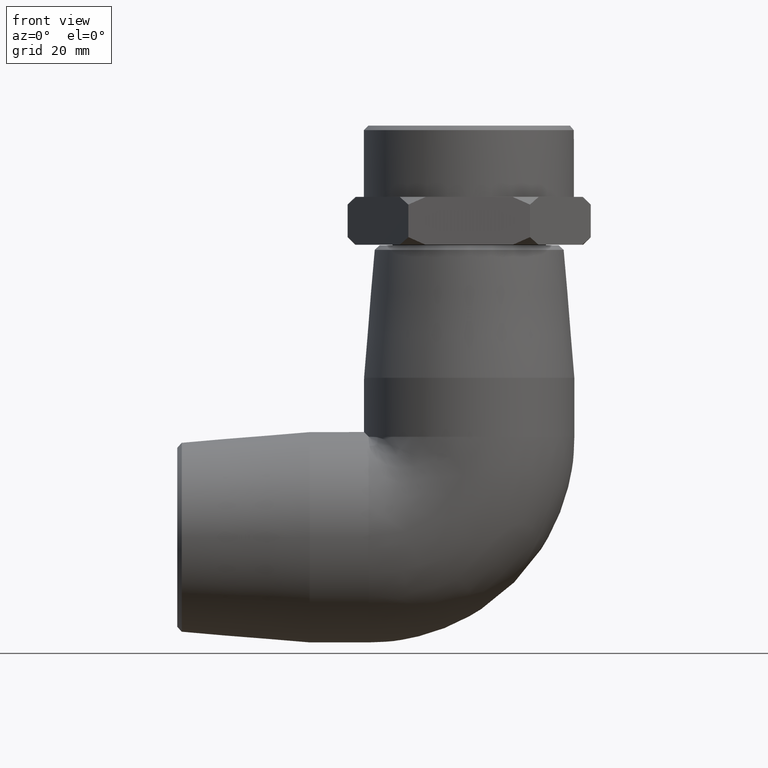
[diagram: clean part render]
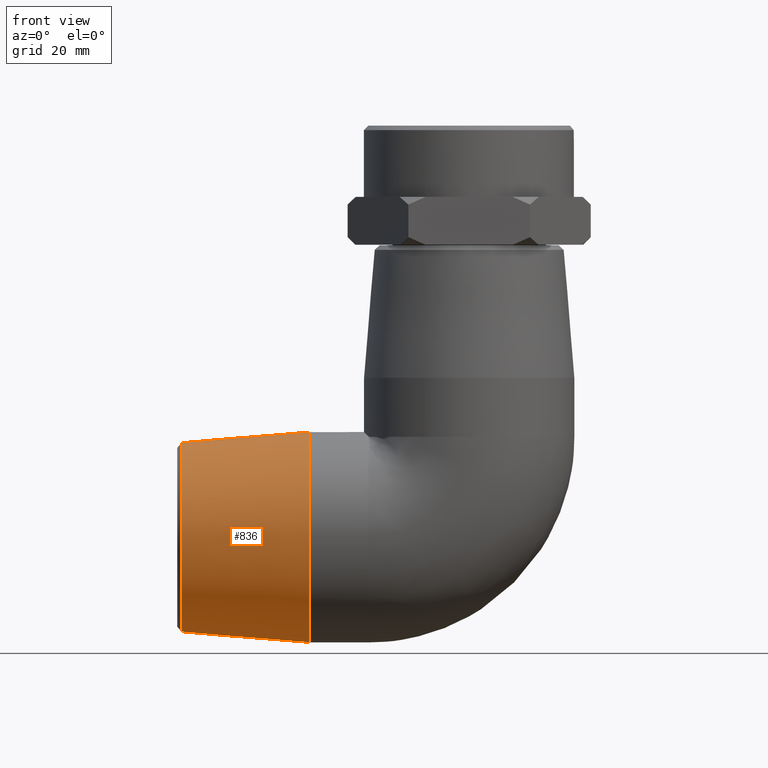
[diagram: same view with one face highlighted and labeled with its STEP entity id]
A machine part, front view. The second image highlights one B-rep face of the part: STEP entity #836.
In plain terms, the highlighted conical surface has half-angle 4.546 deg.
Its self-contained STEP definition (entity closure, byte-faithful):
#18=B_SPLINE_CURVE_WITH_KNOTS('',3,(#1450,#1451,#1452,#1453,#1454,#1455,
#1456,#1457,#1458,#1459,#1460,#1461,#1462,#1463,#1464,#1465,#1466,#1467,
#1468,#1469,#1470,#1471,#1472,#1473,#1474,#1475,#1476,#1477,#1478,#1479,
#1480,#1481,#1482,#1483),.UNSPECIFIED.,.T.,.F.,(4,2,2,2,2,2,2,2,2,2,2,2,
2,2,2,2,4),(0.,0.352700193411278,0.705400386822555,1.06065997794798,1.4159195690734,
1.77117916019882,2.12643875132425,2.47913894473552,2.8318391381468,3.21426147151368,
3.59668380488056,3.96833233978789,4.33998087469521,4.71162940960254,5.08327794450986,
5.46570027787674,5.84812261124363),.UNSPECIFIED.);
#38=FACE_BOUND('',#239,.T.);
#39=FACE_BOUND('',#240,.T.);
#169=FACE_OUTER_BOUND('',#238,.T.);
#238=EDGE_LOOP('',(#662));
#239=EDGE_LOOP('',(#663));
#240=EDGE_LOOP('',(#664));
#335=CIRCLE('',#925,19.8760971426856);
#336=CIRCLE('',#927,22.);
#440=VERTEX_POINT('',#1444);
#441=VERTEX_POINT('',#1447);
#442=VERTEX_POINT('',#1449);
#535=EDGE_CURVE('',#440,#440,#335,.T.);
#536=EDGE_CURVE('',#441,#441,#336,.T.);
#537=EDGE_CURVE('',#442,#442,#18,.T.);
#662=ORIENTED_EDGE('',*,*,#536,.F.);
#663=ORIENTED_EDGE('',*,*,#537,.T.);
#664=ORIENTED_EDGE('',*,*,#535,.F.);
#806=CONICAL_SURFACE('',#926,20.9,4.54648338271799);
#836=ADVANCED_FACE('',(#169,#38,#39),#806,.T.);
#925=AXIS2_PLACEMENT_3D('',#1445,#1105,#1106);
#926=AXIS2_PLACEMENT_3D('',#1446,#1107,#1108);
#927=AXIS2_PLACEMENT_3D('',#1448,#1109,#1110);
#1105=DIRECTION('center_axis',(-1.,0.,0.));
#1106=DIRECTION('ref_axis',(0.,-1.,-6.12323399573677E-17));
#1107=DIRECTION('center_axis',(1.,-2.27504718160893E-18,0.));
#1108=DIRECTION('ref_axis',(0.,1.,0.));
#1109=DIRECTION('center_axis',(1.,-2.27504718160893E-18,0.));
#1110=DIRECTION('ref_axis',(0.,0.,-1.));
#1444=CARTESIAN_POINT('',(-60.0430207813776,19.8760971426856,-2.43411987453318E-15));
#1445=CARTESIAN_POINT('Origin',(-60.0430207813776,0.,-1.21705993726659E-15));
#1446=CARTESIAN_POINT('Origin',(-47.1666666666667,-3.14714860122568E-17,
0.));
#1447=CARTESIAN_POINT('',(-33.3333333333333,22.,0.));
#1448=CARTESIAN_POINT('Origin',(-33.3333333333333,-6.29429720245136E-17,
0.));
#1449=CARTESIAN_POINT('',(-46.0602682614864,18.6527359345863,9.62136636545365));
#1450=CARTESIAN_POINT('Ctrl Pts',(-46.0602682614863,18.6527359345863,9.62136636545365));
#1451=CARTESIAN_POINT('Ctrl Pts',(-47.2322361625234,18.5699124519759,9.57864474688506));
#1452=CARTESIAN_POINT('Ctrl Pts',(-48.4680337026871,18.6113538782614,9.29477438840325));
#1453=CARTESIAN_POINT('Ctrl Pts',(-50.7113065030737,18.8985129488541,8.26038237665403));
#1454=CARTESIAN_POINT('Ctrl Pts',(-51.7203517807895,19.1349894938284,7.51072157983028));
#1455=CARTESIAN_POINT('Ctrl Pts',(-53.3069823604728,19.5832493329027,5.82233956886021));
#1456=CARTESIAN_POINT('Ctrl Pts',(-53.9955728954431,19.8268123115242,4.76196036847415));
#1457=CARTESIAN_POINT('Ctrl Pts',(-54.9119048959261,20.1704598428399,2.44335638516368));
#1458=CARTESIAN_POINT('Ctrl Pts',(-55.1389621646109,20.266058430284,1.18419863708474));
#1459=CARTESIAN_POINT('Ctrl Pts',(-55.1389621646109,20.266058430284,-1.18419863708474));
#1460=CARTESIAN_POINT('Ctrl Pts',(-54.9119048959261,20.1704598428399,-2.44335638516368));
#1461=CARTESIAN_POINT('Ctrl Pts',(-53.9955728954431,19.8268123115242,-4.76196036847415));
#1462=CARTESIAN_POINT('Ctrl Pts',(-53.3069823604728,19.5832493329027,-5.82233956886021));
#1463=CARTESIAN_POINT('Ctrl Pts',(-51.7203517807895,19.1349894938284,-7.51072157983028));
#1464=CARTESIAN_POINT('Ctrl Pts',(-50.7113065030737,18.8985129488541,-8.26038237665403));
#1465=CARTESIAN_POINT('Ctrl Pts',(-48.4680337026871,18.6113538782614,-9.29477438840325));
#1466=CARTESIAN_POINT('Ctrl Pts',(-47.2322361625234,18.5699124519759,-9.57864474688506));
#1467=CARTESIAN_POINT('Ctrl Pts',(-44.7895383108989,18.7425389743044,-9.66768814628454));
#1468=CARTESIAN_POINT('Ctrl Pts',(-43.4602629554652,18.9862188514755,-9.43829136894649));
#1469=CARTESIAN_POINT('Ctrl Pts',(-41.04422898226,19.651715607722,-8.45864045551373));
#1470=CARTESIAN_POINT('Ctrl Pts',(-39.9545419235782,20.0639278337078,-7.70910972441213));
#1471=CARTESIAN_POINT('Ctrl Pts',(-38.258689345906,20.7794201420516,-5.99733090427889));
#1472=CARTESIAN_POINT('Ctrl Pts',(-37.5252883473859,21.134551763808,-4.92433911740575));
#1473=CARTESIAN_POINT('Ctrl Pts',(-36.5414476064506,21.6294602695051,-2.54579354816424));
#1474=CARTESIAN_POINT('Ctrl Pts',(-36.2921537597489,21.7647203034417,-1.23882844969108));
#1475=CARTESIAN_POINT('Ctrl Pts',(-36.2921537597489,21.7647203034417,1.23882844969108));
#1476=CARTESIAN_POINT('Ctrl Pts',(-36.5414476064506,21.6294602695051,2.54579354816424));
#1477=CARTESIAN_POINT('Ctrl Pts',(-37.5252883473859,21.134551763808,4.92433911740575));
#1478=CARTESIAN_POINT('Ctrl Pts',(-38.258689345906,20.7794201420516,5.99733090427889));
#1479=CARTESIAN_POINT('Ctrl Pts',(-39.9545419235782,20.0639278337078,7.70910972441213));
#1480=CARTESIAN_POINT('Ctrl Pts',(-41.04422898226,19.651715607722,8.45864045551372));
#1481=CARTESIAN_POINT('Ctrl Pts',(-43.4602629554652,18.9862188514755,9.43829136894648));
#1482=CARTESIAN_POINT('Ctrl Pts',(-44.7895383108988,18.7425389743044,9.66768814628455));
#1483=CARTESIAN_POINT('Ctrl Pts',(-46.0602682614863,18.6527359345863,9.62136636545365));